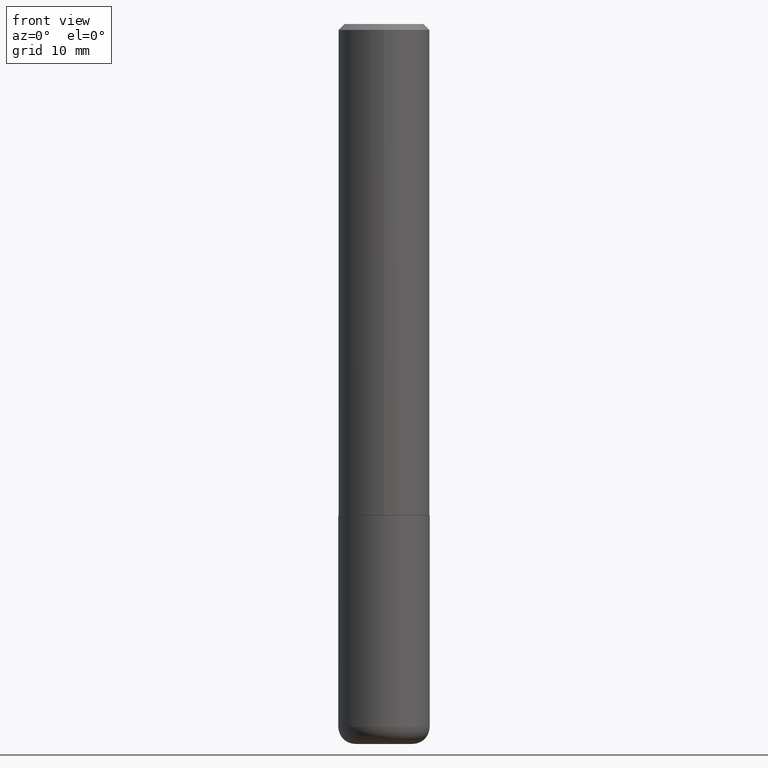
[diagram: clean part render]
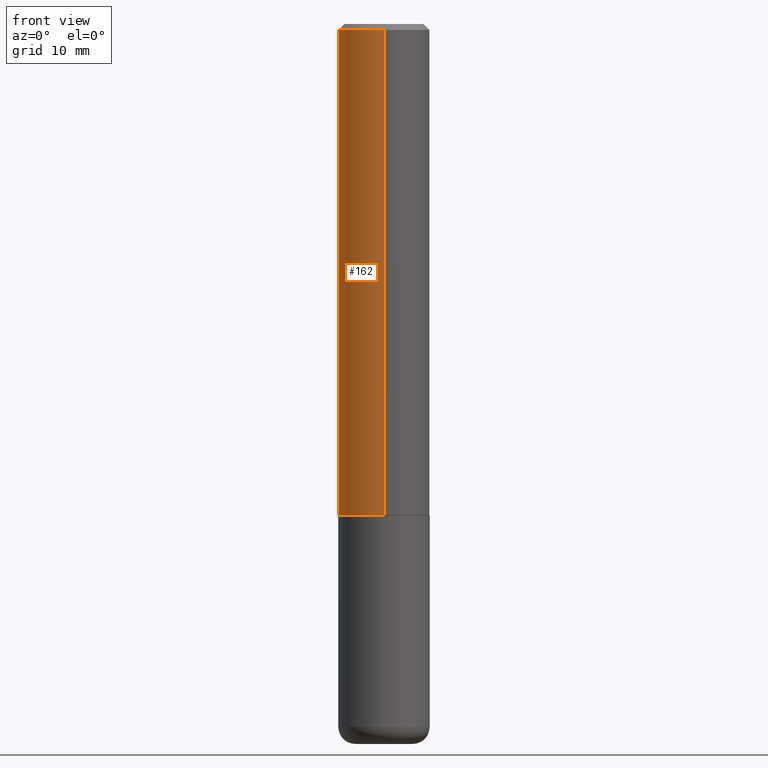
[diagram: same view with one face highlighted and labeled with its STEP entity id]
A machine part, front view. The second image highlights one B-rep face of the part: STEP entity #162.
In plain terms, the highlighted cylindrical surface (partial cylindrical patch) has radius 4.0005 mm, axis along (-0, 0, 1).
Its self-contained STEP definition (entity closure, byte-faithful):
#4 = VERTEX_POINT ( 'NONE', #344 ) ;
#6 = CYLINDRICAL_SURFACE ( 'NONE', #92, 0.1575000000000001399 ) ;
#12 = ORIENTED_EDGE ( 'NONE', *, *, #70, .F. ) ;
#19 = CARTESIAN_POINT ( 'NONE',  ( -1.080528434649015779E-15, -0.1575000000000000844, -0.01999999999999948347 ) ) ;
#22 = VECTOR ( 'NONE', #391, 39.37007874015748143 ) ;
#48 = CARTESIAN_POINT ( 'NONE',  ( 0.000000000000000000, 0.000000000000000000, 0.000000000000000000 ) ) ;
#61 = ORIENTED_EDGE ( 'NONE', *, *, #135, .T. ) ;
#70 = EDGE_CURVE ( 'NONE', #249, #238, #348, .T. ) ;
#78 = LINE ( 'NONE', #80, #22 ) ;
#80 = CARTESIAN_POINT ( 'NONE',  ( 1.119104808822158392E-15, 0.1575000000000001399, -5.495868316503780705E-16 ) ) ;
#91 = CARTESIAN_POINT ( 'NONE',  ( 4.893788250309175717E-31, -6.978880401909569159E-17, -0.02000000000000003511 ) ) ;
#92 = AXIS2_PLACEMENT_3D ( 'NONE', #48, #164, #260 ) ;
#127 = VERTEX_POINT ( 'NONE', #320 ) ;
#135 = EDGE_CURVE ( 'NONE', #127, #238, #194, .T. ) ;
#140 = AXIS2_PLACEMENT_3D ( 'NONE', #245, #177, #338 ) ;
#151 = EDGE_CURVE ( 'NONE', #4, #249, #78, .T. ) ;
#162 = ADVANCED_FACE ( 'NONE', ( #200 ), #6, .T. ) ;
#163 = DIRECTION ( 'NONE',  ( -2.446894125154584110E-29, 3.489440200954778984E-15, 1.000000000000000000 ) ) ;
#164 = DIRECTION ( 'NONE',  ( -2.446894125154584110E-29, 3.489440200954778984E-15, 1.000000000000000000 ) ) ;
#165 = DIRECTION ( 'NONE',  ( -2.446894125154584390E-29, 3.489440200954778984E-15, 1.000000000000000000 ) ) ;
#177 = DIRECTION ( 'NONE',  ( -2.446894125154584110E-29, 3.489440200954778984E-15, 1.000000000000000000 ) ) ;
#194 = LINE ( 'NONE', #290, #221 ) ;
#200 = FACE_OUTER_BOUND ( 'NONE', #226, .T. ) ;
#211 = CARTESIAN_POINT ( 'NONE',  ( 1.099816621735587480E-15, 0.1574999999999999456, -0.02000000000000058328 ) ) ;
#221 = VECTOR ( 'NONE', #165, 39.37007874015748143 ) ;
#223 = CIRCLE ( 'NONE', #140, 0.1575000000000002232 ) ;
#226 = EDGE_LOOP ( 'NONE', ( #404, #325, #61, #12 ) ) ;
#238 = VERTEX_POINT ( 'NONE', #19 ) ;
#242 = EDGE_CURVE ( 'NONE', #4, #127, #223, .T. ) ;
#245 = CARTESIAN_POINT ( 'NONE',  ( 4.139900170349041117E-29, -5.903783875995391742E-15, -1.691900000000000404 ) ) ;
#249 = VERTEX_POINT ( 'NONE', #211 ) ;
#260 = DIRECTION ( 'NONE',  ( -6.982962677686265133E-15, -1.000000000000000000, 3.489440200954778195E-15 ) ) ;
#290 = CARTESIAN_POINT ( 'NONE',  ( -1.099816621735587677E-15, -0.1575000000000001399, 5.495868316503780705E-16 ) ) ;
#320 = CARTESIAN_POINT ( 'NONE',  ( -1.099816621735546854E-15, -0.1575000000000061351, -1.691899999999999737 ) ) ;
#325 = ORIENTED_EDGE ( 'NONE', *, *, #242, .T. ) ;
#338 = DIRECTION ( 'NONE',  ( -6.982962677686265922E-15, -1.000000000000000000, 3.469013325287948560E-15 ) ) ;
#344 = CARTESIAN_POINT ( 'NONE',  ( 1.119104808822179494E-15, 0.1574999999999943112, -1.691900000000000848 ) ) ;
#348 = CIRCLE ( 'NONE', #408, 0.1575000000000000289 ) ;
#362 = DIRECTION ( 'NONE',  ( -6.982962677686264344E-15, -1.000000000000000000, 3.496114991891764787E-15 ) ) ;
#391 = DIRECTION ( 'NONE',  ( -2.446894125154584390E-29, 3.489440200954778984E-15, 1.000000000000000000 ) ) ;
#404 = ORIENTED_EDGE ( 'NONE', *, *, #151, .F. ) ;
#408 = AXIS2_PLACEMENT_3D ( 'NONE', #91, #163, #362 ) ;